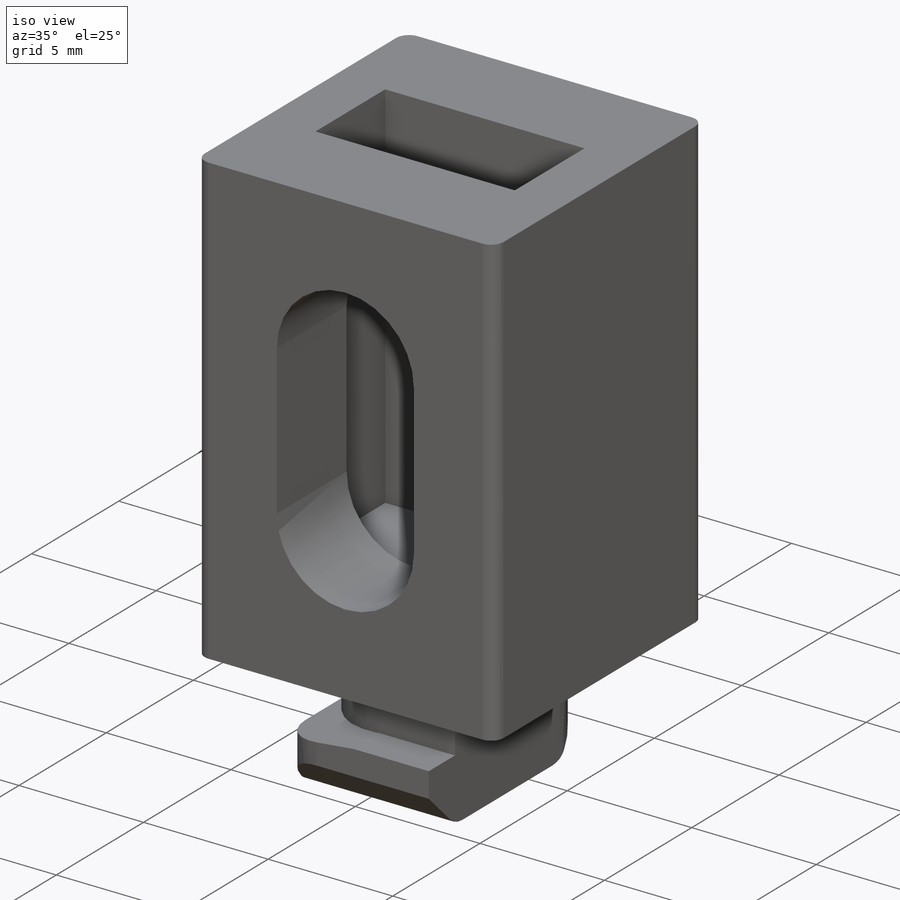
[diagram: iso view]
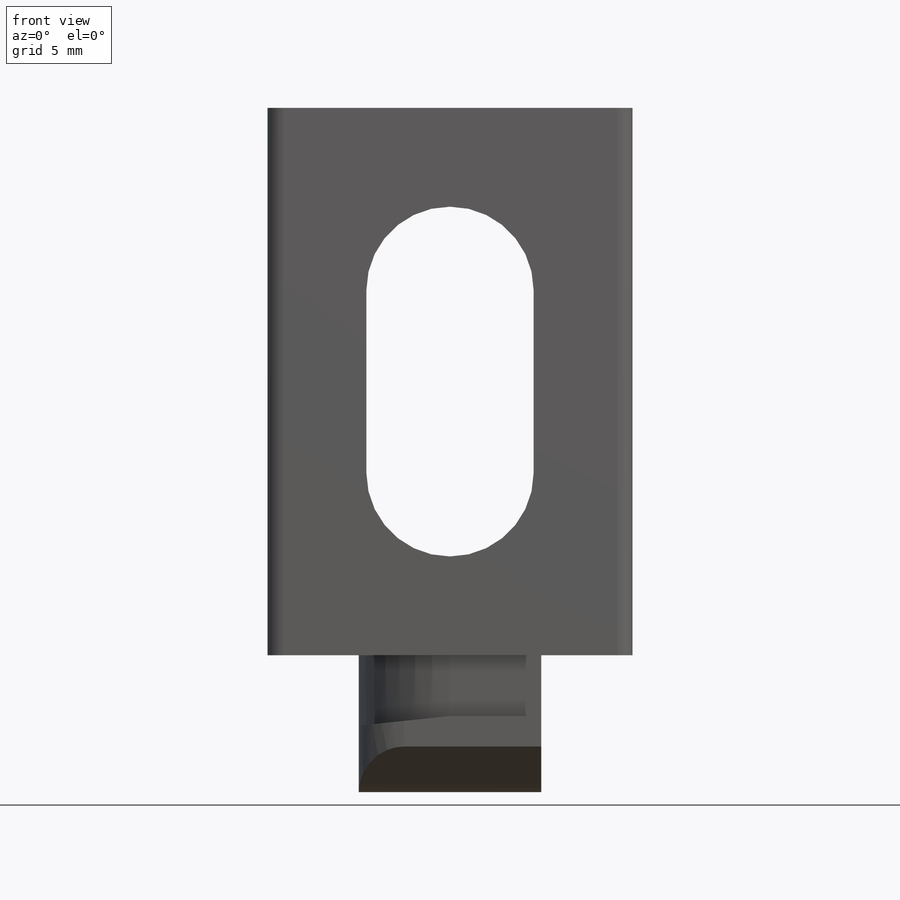
[diagram: front view]
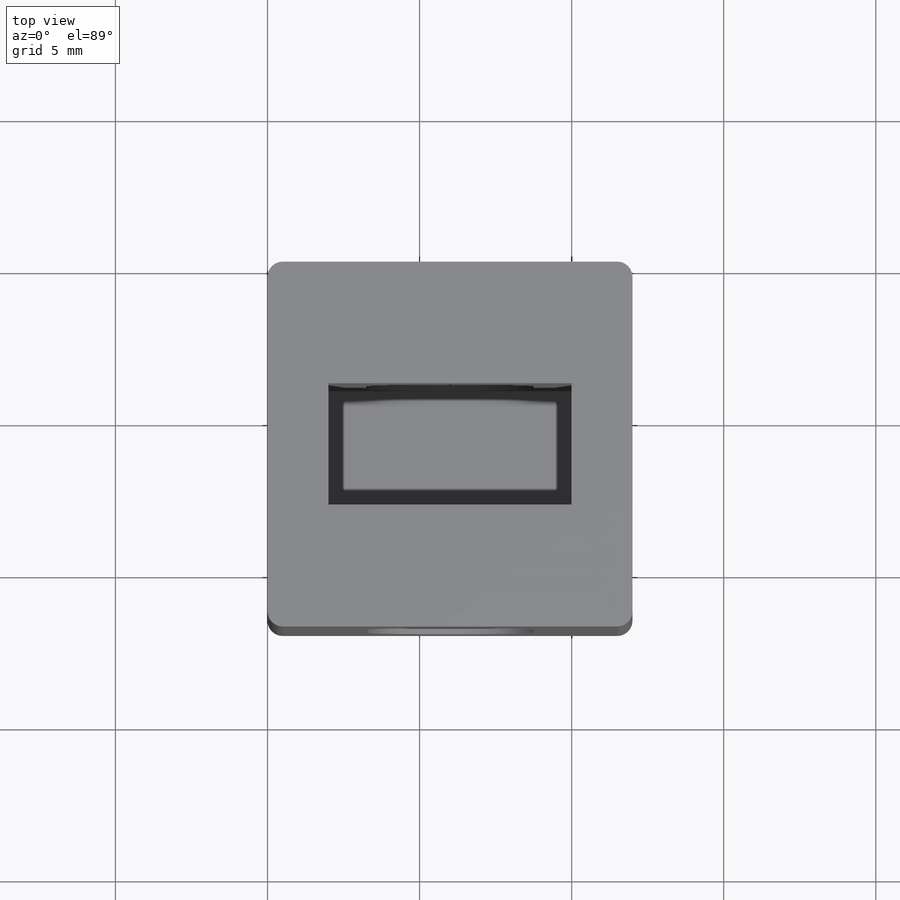
[diagram: top view]
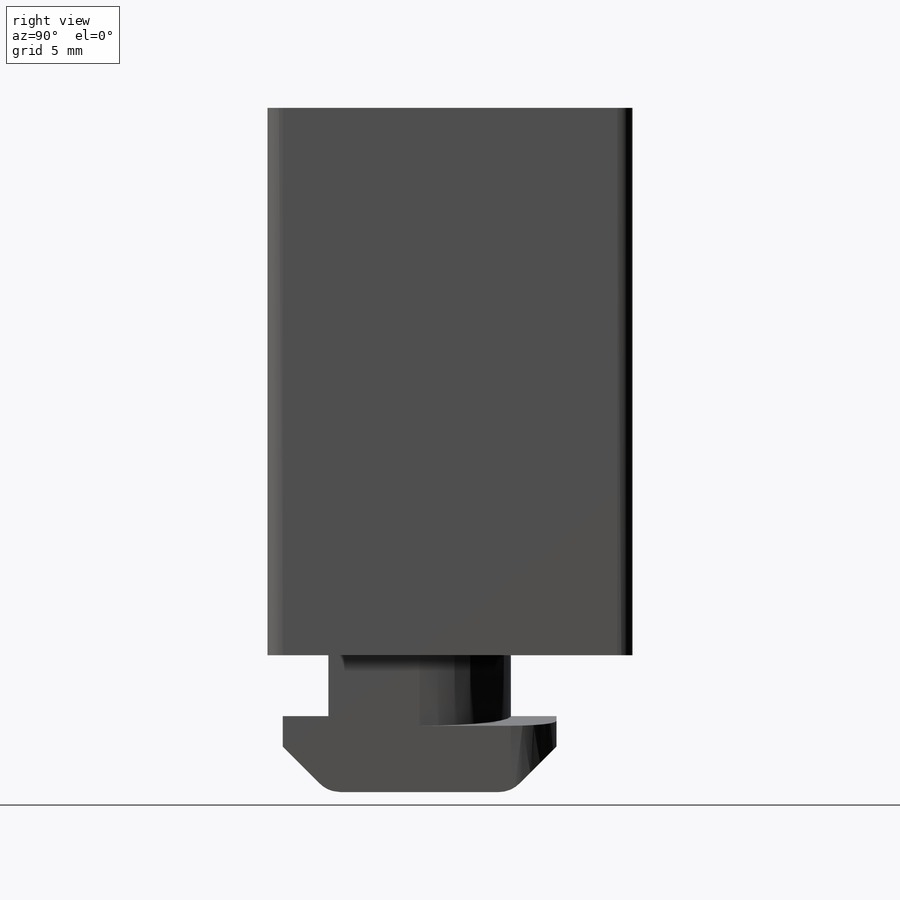
[diagram: right view]
SOLIDWORKS PART (.sldprt)
format: sldprt  version: not decoded by parser v0  size: 522,240 bytes
history: native  units: mm
features: sketch x7, cut_extrude x4, fillet x4, plane x3, extrude x3, chamfer x2, material x1 (+12 scaffold rows collapsed)
feature tree (36):
  scaffold x12  (default folders/planes/origin — collapsed)
  material  "材质 <未指定>"
  plane  "前视基准面"
  plane  "上视基准面"
  plane  "右视基准面"
  sketch  "草图1"  dims[D1=12.0mm D2=18.0mm]
  extrude  "拉伸1"  Depth=12mm
  sketch  "草图2"  dims[c1.D3=2.75mm c1.D4=2.75mm c1.D6=2.75mm c1.D1=5.5mm c1.D2=3.25mm c2.D3=5.5mm c2.D5=6.0mm c2.D6=6.0mm]
  cut_extrude  "切除-拉伸1"  Depth=12mm
  sketch  "草图3"  dims[D1=8.0mm D2=4.0mm D3=2.0mm D4=4.0mm]
  cut_extrude  "切除-拉伸2"  Depth=15mm
  sketch  "草图4"  dims[c1.D1=6.0mm c1.D2=6.0mm c2.D1=3.0mm c2.D2=3.0mm c2.D3=3.0mm c2.D4=3.0mm c2.D5=3.0mm c2.D6=2.0mm]
  extrude  "拉伸2"  Depth=4.5mm
  sketch  "草图5"  dims[c1.D1=9.0mm c1.D2=6.0mm c1.D3=~0.912474mm c1.D4=2.5mm c1.D5=~3.912474mm c2.D3=3.0mm]
  extrude  "拉伸3"  Depth=2.5mm
  fillet  "圆角2"  Radius=0.5mm
  chamfer  "倒角3"  Distance=1.5mm Angle=45deg
  chamfer  "倒角4"  Distance=1.5mm Angle=45deg
  fillet  "圆角3"  Radius=1mm
  sketch  "草图8"  dims[c1.D1=3.0mm c2.D1=~9.462322deg c3.D1=3.0mm c4.D1=6.0deg]
  cut_extrude  "切除-拉伸3"  [1 undecoded]
  sketch  "草图9"  dims[c1.D1=3.0mm c2.D1=6.0deg]
  cut_extrude  "切除-拉伸4"  [1 undecoded]
  fillet  "圆角6"  Radius=1.5mm
  fillet  "圆角7"  Radius=1.5mm
decode coverage: 18 of 20 modeling features carry decoded parameters
note: ~ marks probable driven/reference dimensions
note: 2 parameter values undecoded
note: suppression state not decoded; provenance and decode notes live in map.json
